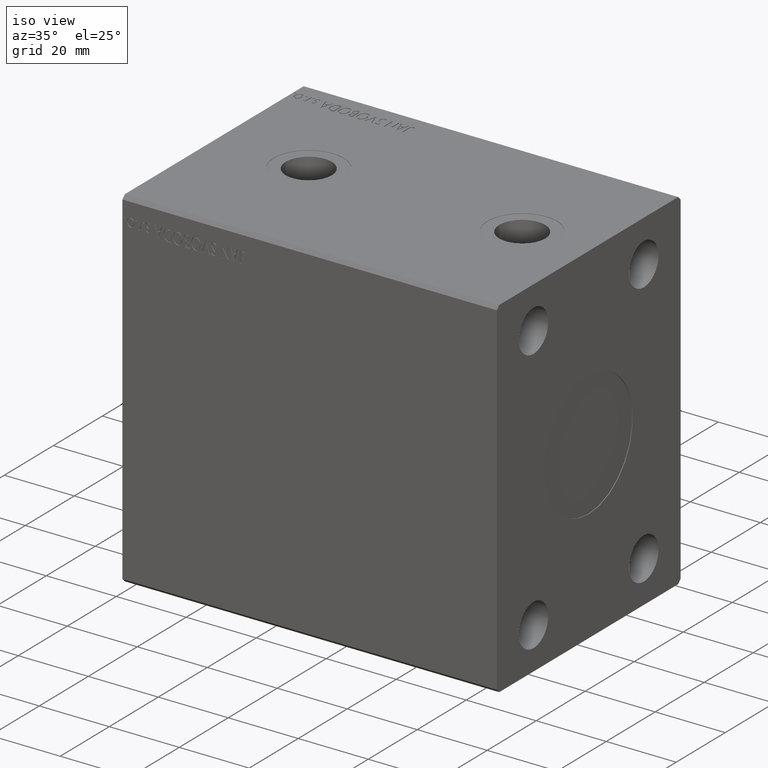
[diagram: clean part render]
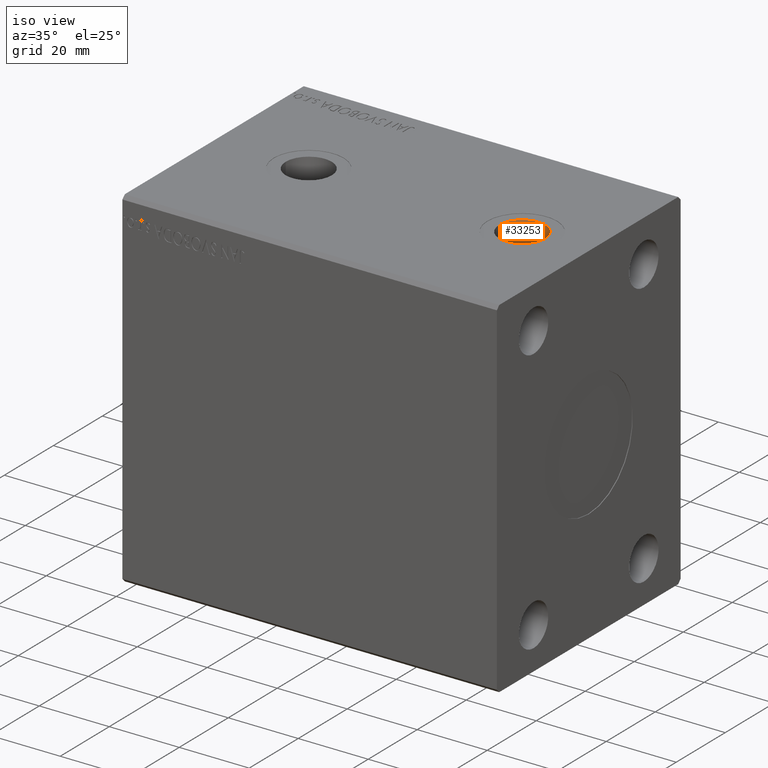
[diagram: same view with one face highlighted and labeled with its STEP entity id]
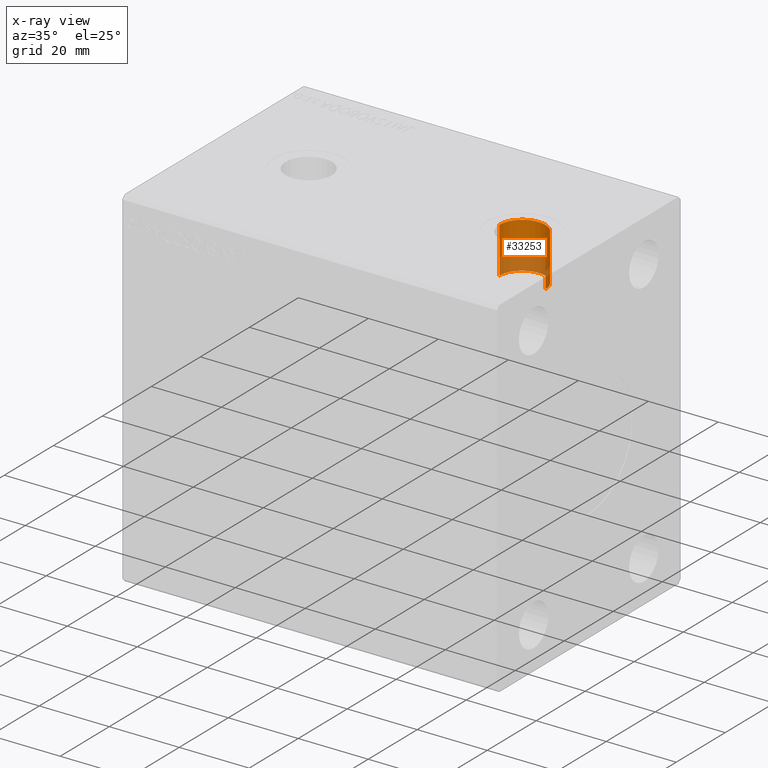
[diagram: x-ray of the same camera — body ghosted, the highlighted face saturated]
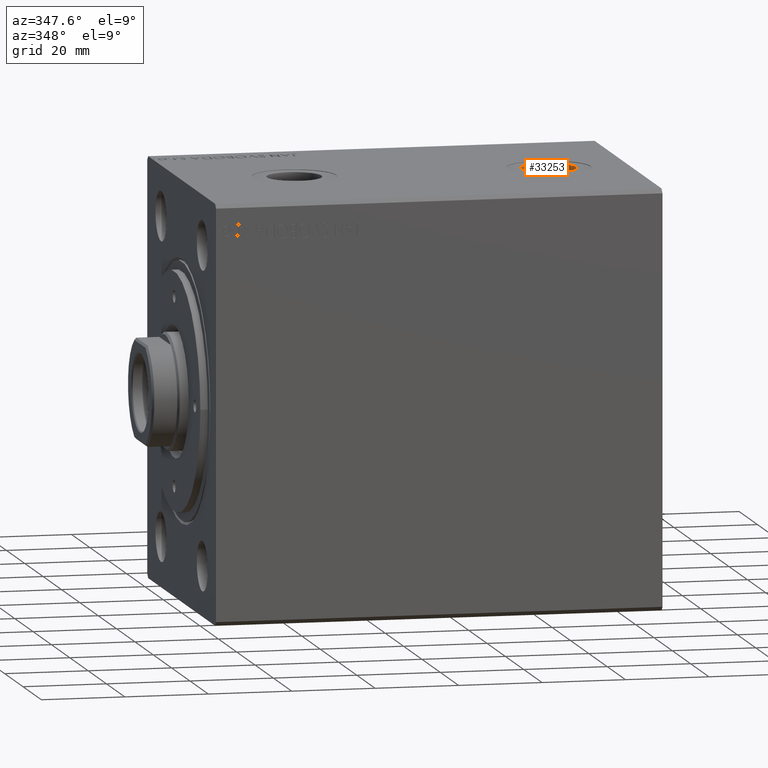
[diagram: same view with one face highlighted and labeled with its STEP entity id]
A machine part, iso view. The second image highlights one B-rep face of the part: STEP entity #33253.
The next image is the same camera in x-ray: the body ghosted, the highlighted face saturated — about 36% of this face is hidden behind the body in this view.
A second angle (auxiliary view) of the same face is appended — the face is thin or edge-on in the first view.
In plain terms, the highlighted cylindrical surface (edge-blend (fillet) strip) has radius 6.58 mm, axis along (0, 0, 1).
Its self-contained STEP definition (entity closure, byte-faithful):
#290 = ORIENTED_EDGE ( 'NONE', *, *, #35552, .T. ) ;
#800 = DIRECTION ( 'NONE',  ( 1.000000000000000000, 0.000000000000000000, 0.000000000000000000 ) ) ;
#1307 = AXIS2_PLACEMENT_3D ( 'NONE', #11543, #11997, #36062 ) ;
#2038 = VECTOR ( 'NONE', #11546, 1000.000000000000000 ) ;
#3928 = DIRECTION ( 'NONE',  ( 0.000000000000000000, 0.000000000000000000, 1.000000000000000000 ) ) ;
#7324 = CARTESIAN_POINT ( 'NONE',  ( 81.41999999999998749, -8.162221202414984965E-15, 36.73999999999999488 ) ) ;
#8353 = VERTEX_POINT ( 'NONE', #7324 ) ;
#8654 = LINE ( 'NONE', #42306, #2038 ) ;
#9442 = CARTESIAN_POINT ( 'NONE',  ( 88.00000000000000000, -8.968038796253944007E-15, 36.73999999999999488 ) ) ;
#10109 = DIRECTION ( 'NONE',  ( 1.000000000000000000, 0.000000000000000000, 0.000000000000000000 ) ) ;
#11091 = EDGE_LOOP ( 'NONE', ( #19129, #37311, #19390, #290 ) ) ;
#11543 = CARTESIAN_POINT ( 'NONE',  ( 88.00000000000000000, -8.968038796253944007E-15, 36.73999999999999488 ) ) ;
#11546 = DIRECTION ( 'NONE',  ( -0.000000000000000000, -0.000000000000000000, 1.000000000000000000 ) ) ;
#11997 = DIRECTION ( 'NONE',  ( -0.000000000000000000, -0.000000000000000000, 1.000000000000000000 ) ) ;
#13205 = CARTESIAN_POINT ( 'NONE',  ( 94.57999999999999829, -8.968038796253944007E-15, 36.73999999999999488 ) ) ;
#15161 = VERTEX_POINT ( 'NONE', #18869 ) ;
#15534 = AXIS2_PLACEMENT_3D ( 'NONE', #28169, #3928, #800 ) ;
#16975 = AXIS2_PLACEMENT_3D ( 'NONE', #9442, #23052, #10109 ) ;
#18869 = CARTESIAN_POINT ( 'NONE',  ( 81.41999999999998749, -8.162221202414984965E-15, 49.89999999999999147 ) ) ;
#19129 = ORIENTED_EDGE ( 'NONE', *, *, #26401, .F. ) ;
#19390 = ORIENTED_EDGE ( 'NONE', *, *, #37691, .T. ) ;
#22475 = FACE_OUTER_BOUND ( 'NONE', #11091, .T. ) ;
#23052 = DIRECTION ( 'NONE',  ( 0.000000000000000000, 0.000000000000000000, 1.000000000000000000 ) ) ;
#26401 = EDGE_CURVE ( 'NONE', #8353, #15161, #29466, .T. ) ;
#26536 = VERTEX_POINT ( 'NONE', #13205 ) ;
#27945 = VECTOR ( 'NONE', #37267, 1000.000000000000000 ) ;
#28169 = CARTESIAN_POINT ( 'NONE',  ( 88.00000000000000000, -8.968038796253944007E-15, 49.89999999999999147 ) ) ;
#29466 = LINE ( 'NONE', #43062, #27945 ) ;
#33253 = ADVANCED_FACE ( 'NONE', ( #22475 ), #42085, .F. ) ;
#33686 = VERTEX_POINT ( 'NONE', #42644 ) ;
#35428 = CIRCLE ( 'NONE', #16975, 6.580000000000002736 ) ;
#35552 = EDGE_CURVE ( 'NONE', #33686, #15161, #39686, .T. ) ;
#35659 = EDGE_CURVE ( 'NONE', #26536, #8353, #35428, .T. ) ;
#36062 = DIRECTION ( 'NONE',  ( 1.000000000000000000, 0.000000000000000000, 0.000000000000000000 ) ) ;
#37267 = DIRECTION ( 'NONE',  ( -0.000000000000000000, -0.000000000000000000, 1.000000000000000000 ) ) ;
#37311 = ORIENTED_EDGE ( 'NONE', *, *, #35659, .F. ) ;
#37691 = EDGE_CURVE ( 'NONE', #26536, #33686, #8654, .T. ) ;
#39686 = CIRCLE ( 'NONE', #15534, 6.580000000000002736 ) ;
#42085 = CYLINDRICAL_SURFACE ( 'NONE', #1307, 6.580000000000002736 ) ;
#42306 = CARTESIAN_POINT ( 'NONE',  ( 94.57999999999999829, -8.968038796253944007E-15, 36.73999999999999488 ) ) ;
#42644 = CARTESIAN_POINT ( 'NONE',  ( 94.57999999999999829, -8.968038796253944007E-15, 49.89999999999999147 ) ) ;
#43062 = CARTESIAN_POINT ( 'NONE',  ( 81.41999999999998749, -8.162221202414984965E-15, 36.73999999999999488 ) ) ;